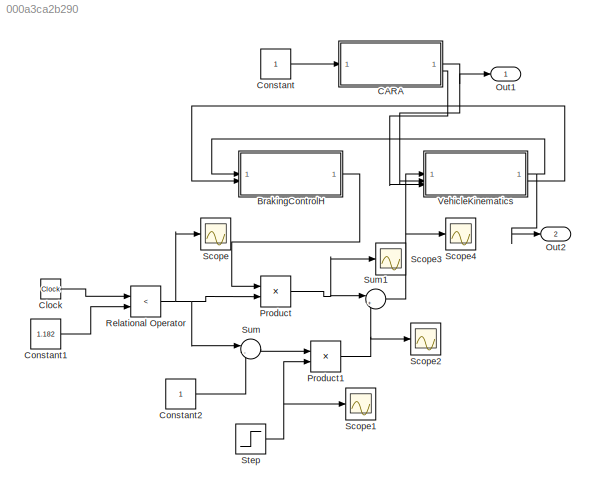
MODEL slx_000a3ca2b290
KIND model
CONFIG AbsTol = auto
CONFIG EnableMultiTasking = off
CONFIG FixedStep = 0.01
CONFIG MaxStep = auto
CONFIG MinStep = auto
CONFIG RelTol = 1e-3
CONFIG SampleTimeConstraint = Unconstrained
CONFIG SolverName = VariableStepAuto
CONFIG StartTime = 0.0
CONFIG StopTime = 10
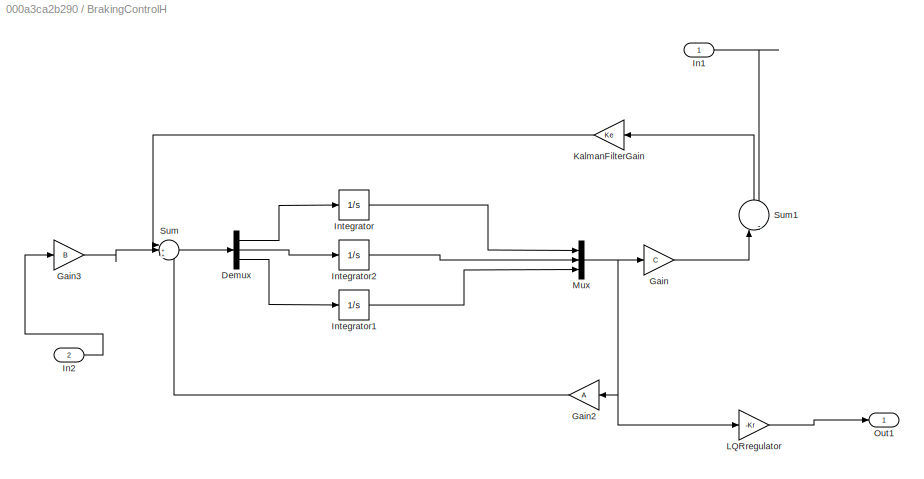
BLOCK [SubSystem] BrakingControlH
BLOCK [Demux] BrakingControlH/Demux
  Outputs = 3
BLOCK [Gain] BrakingControlH/Gain
  Gain = C
  Multiplication = Matrix(K*u)
BLOCK [Gain] BrakingControlH/Gain2
  Gain = A
  Multiplication = Matrix(K*u)
  NameLocation = top
BLOCK [Gain] BrakingControlH/Gain3
  Gain = B
BLOCK [Inport] BrakingControlH/In1
BLOCK [Inport] BrakingControlH/In2
  Port = 2
BLOCK [Integrator] BrakingControlH/Integrator
BLOCK [Integrator] BrakingControlH/Integrator1
BLOCK [Integrator] BrakingControlH/Integrator2
BLOCK [Gain] BrakingControlH/KalmanFilterGain
  Gain = Ke
  NameLocation = top
BLOCK [Gain] BrakingControlH/LQRregulator
  Gain = -Kr
  Multiplication = Matrix(K*u)
BLOCK [Mux] BrakingControlH/Mux
  DisplayOption = bar
  Inputs = 3
BLOCK [Outport] BrakingControlH/Out1
BLOCK [Sum] BrakingControlH/Sum
  Inputs = |+++
BLOCK [Sum] BrakingControlH/Sum1
  Inputs = |-+
  NameLocation = right
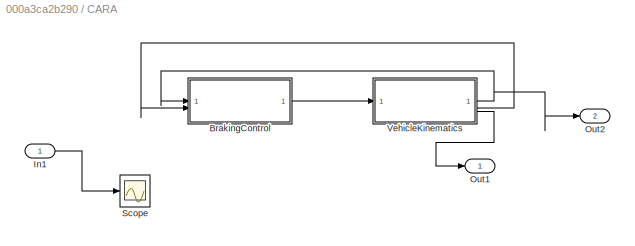
BLOCK [SubSystem] CARA
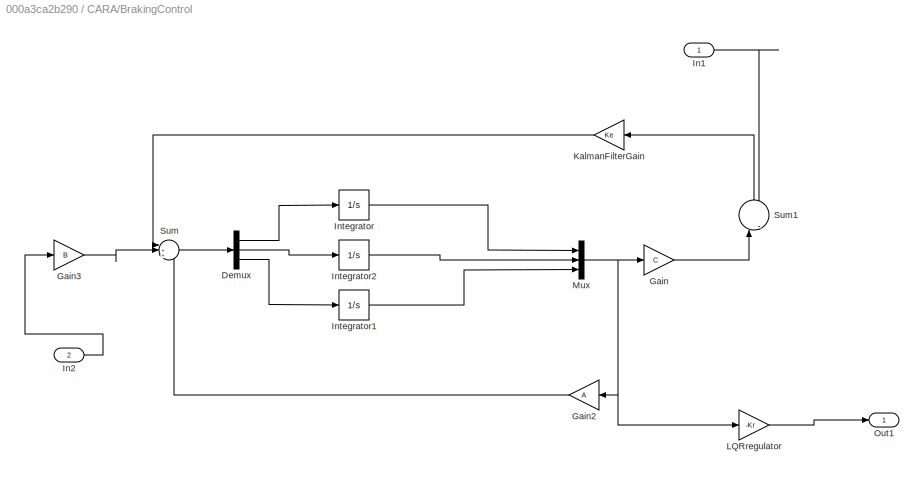
BLOCK [SubSystem] CARA/BrakingControl
BLOCK [Demux] CARA/BrakingControl/Demux
  Outputs = 3
BLOCK [Gain] CARA/BrakingControl/Gain
  Gain = C
  Multiplication = Matrix(K*u)
BLOCK [Gain] CARA/BrakingControl/Gain2
  Gain = A
  Multiplication = Matrix(K*u)
  NameLocation = top
BLOCK [Gain] CARA/BrakingControl/Gain3
  Gain = B
BLOCK [Inport] CARA/BrakingControl/In1
BLOCK [Inport] CARA/BrakingControl/In2
  Port = 2
BLOCK [Integrator] CARA/BrakingControl/Integrator
BLOCK [Integrator] CARA/BrakingControl/Integrator1
BLOCK [Integrator] CARA/BrakingControl/Integrator2
BLOCK [Gain] CARA/BrakingControl/KalmanFilterGain
  Gain = Ke
  NameLocation = top
BLOCK [Gain] CARA/BrakingControl/LQRregulator
  Gain = -Kr
  Multiplication = Matrix(K*u)
BLOCK [Mux] CARA/BrakingControl/Mux
  DisplayOption = bar
  Inputs = 3
BLOCK [Outport] CARA/BrakingControl/Out1
BLOCK [Sum] CARA/BrakingControl/Sum
  Inputs = |+++
BLOCK [Sum] CARA/BrakingControl/Sum1
  Inputs = |-+
  NameLocation = right
BLOCK [Inport] CARA/In1
BLOCK [Outport] CARA/Out1
BLOCK [Outport] CARA/Out2
  Port = 2
BLOCK [Scope] CARA/Scope
  Floating = off
  NumInputPorts = 1
  ScopeSpecificationString = Simulink.scopes.TimeScopeBlockCfg('CurrentConfiguration', extmgr.ConfigurationSet(extmgr.Configuration('Core','General UI',true),extmgr.Configuration('Core','Source UI',true),extmgr.Configuration('Sources','WiredSimulink',true,'DataLoggingVariableName','ScopeData1'),extmgr.Configuration('Visuals','Time Domain',true),extmgr.Configuration('Tools','Plot Navigation',true),extmgr.Configuration('Tools',...<+40ch>
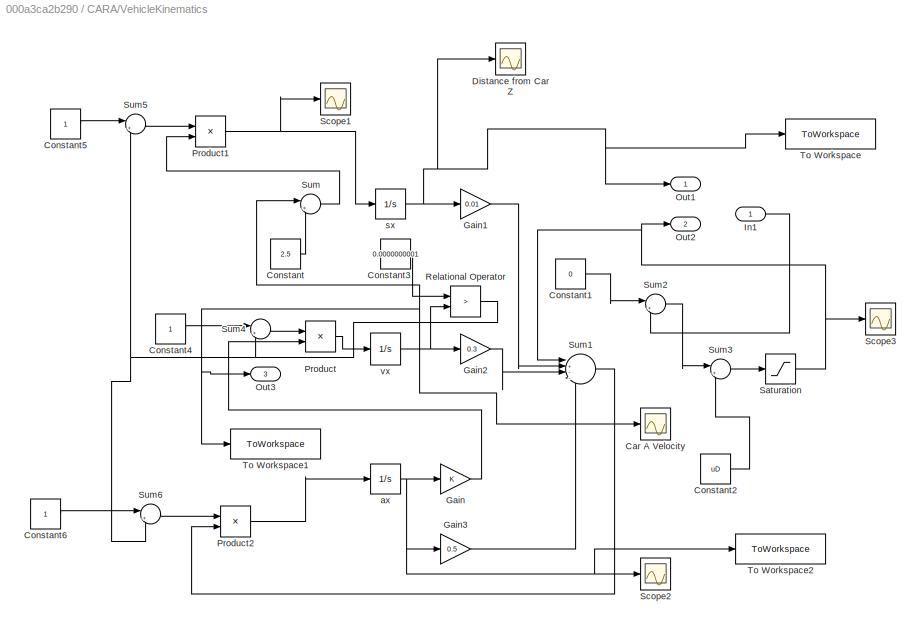
BLOCK [SubSystem] CARA/VehicleKinematics
BLOCK [Scope] CARA/VehicleKinematics/Car A Velocity
  Floating = off
  NumInputPorts = 1
  ScopeSpecificationString = Simulink.scopes.TimeScopeBlockCfg('CurrentConfiguration', extmgr.ConfigurationSet(extmgr.Configuration('Core','General UI',true),extmgr.Configuration('Core','Source UI',true),extmgr.Configuration('Sources','WiredSimulink',true,'DataLoggingVariableName','ScopeData2'),extmgr.Configuration('Visuals','Time Domain',true,'SerializedDisplays',{struct('MinYLimReal','62.44019','MaxYLimReal','76.82742','YLa...<+1426ch>
BLOCK [Constant] CARA/VehicleKinematics/Constant
  Value = 2.5
BLOCK [Constant] CARA/VehicleKinematics/Constant1
  Value = 0
BLOCK [Constant] CARA/VehicleKinematics/Constant2
  Value = uD
BLOCK [Constant] CARA/VehicleKinematics/Constant3
  Value = 0.0000000001
BLOCK [Constant] CARA/VehicleKinematics/Constant4
BLOCK [Constant] CARA/VehicleKinematics/Constant5
BLOCK [Constant] CARA/VehicleKinematics/Constant6
BLOCK [Scope] CARA/VehicleKinematics/Distance from Car Z
  Floating = off
  NumInputPorts = 1
  ScopeSpecificationString = Simulink.scopes.TimeScopeBlockCfg('CurrentConfiguration', extmgr.ConfigurationSet(extmgr.Configuration('Core','General UI',true),extmgr.Configuration('Core','Source UI',true),extmgr.Configuration('Sources','WiredSimulink',true,'DataLoggingVariableName','ScopeData1'),extmgr.Configuration('Visuals','Time Domain',true,'SerializedDisplays',{struct('MinYLimReal','-51.1177','MaxYLimReal','22.05928','YLa...<+1422ch>
BLOCK [Gain] CARA/VehicleKinematics/Gain
BLOCK [Gain] CARA/VehicleKinematics/Gain1
  Gain = 0.01
BLOCK [Gain] CARA/VehicleKinematics/Gain2
  Gain = 0.3
BLOCK [Gain] CARA/VehicleKinematics/Gain3
  Gain = 0.5
BLOCK [Inport] CARA/VehicleKinematics/In1
BLOCK [Outport] CARA/VehicleKinematics/Out1
BLOCK [Outport] CARA/VehicleKinematics/Out2
  Port = 2
BLOCK [Outport] CARA/VehicleKinematics/Out3
  Port = 3
BLOCK [Product] CARA/VehicleKinematics/Product
BLOCK [Product] CARA/VehicleKinematics/Product1
BLOCK [Product] CARA/VehicleKinematics/Product2
BLOCK [RelationalOperator] CARA/VehicleKinematics/Relational Operator
  InputSameDT = off
  Operator = >
  OutDataTypeStr = boolean
  RndMeth = Simplest
BLOCK [Saturate] CARA/VehicleKinematics/Saturation
  LowerLimit = -150
  UpperLimit = 0
BLOCK [Scope] CARA/VehicleKinematics/Scope1
  Floating = off
  NumInputPorts = 1
  ScopeSpecificationString = Simulink.scopes.TimeScopeBlockCfg('CurrentConfiguration', extmgr.ConfigurationSet(extmgr.Configuration('Core','General UI',true),extmgr.Configuration('Core','Source UI',true),extmgr.Configuration('Sources','WiredSimulink',true,'DataLoggingVariableName','ScopeData2'),extmgr.Configuration('Visuals','Time Domain',true,'SerializedDisplays',{struct('MinYLimReal','59.94019','MaxYLimReal','74.32742','YLa...<+1432ch>
BLOCK [Scope] CARA/VehicleKinematics/Scope2
  Floating = off
  NumInputPorts = 1
  ScopeSpecificationString = Simulink.scopes.TimeScopeBlockCfg('CurrentConfiguration', extmgr.ConfigurationSet(extmgr.Configuration('Core','General UI',true),extmgr.Configuration('Core','Source UI',true),extmgr.Configuration('Sources','WiredSimulink',true,'DataLoggingVariableName','ScopeData3'),extmgr.Configuration('Visuals','Time Domain',true,'SerializedDisplays',{struct('MinYLimReal','-43.53248','MaxYLimReal','4.83694','YLa...<+1365ch>
BLOCK [Scope] CARA/VehicleKinematics/Scope3
  Floating = off
  NumInputPorts = 1
  ScopeSpecificationString = Simulink.scopes.TimeScopeBlockCfg('CurrentConfiguration', extmgr.ConfigurationSet(extmgr.Configuration('Core','General UI',true),extmgr.Configuration('Core','Source UI',true),extmgr.Configuration('Sources','WiredSimulink',true,'DataLoggingVariableName','ScopeData4'),extmgr.Configuration('Visuals','Time Domain',true,'SerializedDisplays',{struct('MinYLimReal','-168.75','MaxYLimReal','18.75','YLabelR...<+1421ch>
BLOCK [Sum] CARA/VehicleKinematics/Sum
  Inputs = |+-
BLOCK [Sum] CARA/VehicleKinematics/Sum1
  Inputs = |+---
BLOCK [Sum] CARA/VehicleKinematics/Sum2
  Inputs = |++
BLOCK [Sum] CARA/VehicleKinematics/Sum3
  Inputs = |++
BLOCK [Sum] CARA/VehicleKinematics/Sum4
  Inputs = |+-
BLOCK [Sum] CARA/VehicleKinematics/Sum5
  Inputs = |+-
BLOCK [Sum] CARA/VehicleKinematics/Sum6
  Inputs = |+-
BLOCK [ToWorkspace] CARA/VehicleKinematics/To Workspace
  FixptAsFi = on
  MaxDataPoints = inf
  SampleTime = -1
  SaveFormat = Timeseries
  VariableName = sx1
BLOCK [ToWorkspace] CARA/VehicleKinematics/To Workspace1
  FixptAsFi = on
  MaxDataPoints = inf
  SampleTime = -1
  SaveFormat = Timeseries
  VariableName = vx1
BLOCK [ToWorkspace] CARA/VehicleKinematics/To Workspace2
  FixptAsFi = on
  MaxDataPoints = inf
  SampleTime = -1
  SaveFormat = Timeseries
  VariableName = ax1
BLOCK [Integrator] CARA/VehicleKinematics/ax
BLOCK [Integrator] CARA/VehicleKinematics/sx
  InitialCondition = -43.8
BLOCK [Integrator] CARA/VehicleKinematics/vx
  InitialCondition = 75.3887
BLOCK [Clock] Clock
BLOCK [Constant] Constant
BLOCK [Constant] Constant1
  Value = 1.182
BLOCK [Constant] Constant2
BLOCK [Outport] Out1
BLOCK [Outport] Out2
  Port = 2
BLOCK [Product] Product
BLOCK [Product] Product1
BLOCK [RelationalOperator] Relational Operator
  InputSameDT = off
  Operator = <
  OutDataTypeStr = boolean
  RndMeth = Simplest
BLOCK [Scope] Scope
  Floating = off
  NumInputPorts = 1
  ScopeSpecificationString = Simulink.scopes.TimeScopeBlockCfg('CurrentConfiguration', extmgr.ConfigurationSet(extmgr.Configuration('Core','General UI',true),extmgr.Configuration('Core','Source UI',true),extmgr.Configuration('Sources','WiredSimulink',true,'DataLoggingVariableName','ScopeData1'),extmgr.Configuration('Visuals','Time Domain',true,'SerializedDisplays',{struct('MinYLimReal','-0.125','MaxYLimReal','1.125','YLabelRe...<+1396ch>
BLOCK [Scope] Scope1
  Floating = off
  NumInputPorts = 1
  ScopeSpecificationString = Simulink.scopes.TimeScopeBlockCfg('CurrentConfiguration', extmgr.ConfigurationSet(extmgr.Configuration('Core','General UI',true),extmgr.Configuration('Core','Source UI',true),extmgr.Configuration('Sources','WiredSimulink',true,'DataLoggingVariableName','ScopeData2'),extmgr.Configuration('Visuals','Time Domain',true,'SerializedDisplays',{struct('MinYLimReal','-265.00000','MaxYLimReal','-65.00000','...<+1436ch>
BLOCK [Scope] Scope2
  Floating = off
  NumInputPorts = 1
  ScopeSpecificationString = Simulink.scopes.TimeScopeBlockCfg('CurrentConfiguration', extmgr.ConfigurationSet(extmgr.Configuration('Core','General UI',true),extmgr.Configuration('Core','Source UI',true),extmgr.Configuration('Sources','WiredSimulink',true,'DataLoggingVariableName','ScopeData3'),extmgr.Configuration('Visuals','Time Domain',true,'SerializedDisplays',{struct('MinYLimReal','-265.00000','MaxYLimReal','-65.00000','...<+1411ch>
BLOCK [Scope] Scope3
  Floating = off
  NumInputPorts = 1
  ScopeSpecificationString = Simulink.scopes.TimeScopeBlockCfg('CurrentConfiguration', extmgr.ConfigurationSet(extmgr.Configuration('Core','General UI',true),extmgr.Configuration('Core','Source UI',true),extmgr.Configuration('Sources','WiredSimulink',true,'DataLoggingVariableName','ScopeData4'),extmgr.Configuration('Visuals','Time Domain',true,'SerializedDisplays',{struct('MinYLimReal','-1.00000','MaxYLimReal','1.00000','YLab...<+1422ch>
BLOCK [Scope] Scope4
  Floating = off
  NumInputPorts = 1
  ScopeSpecificationString = Simulink.scopes.TimeScopeBlockCfg('CurrentConfiguration', extmgr.ConfigurationSet(extmgr.Configuration('Core','General UI',true),extmgr.Configuration('Core','Source UI',true),extmgr.Configuration('Sources','WiredSimulink',true,'DataLoggingVariableName','ScopeData5'),extmgr.Configuration('Visuals','Time Domain',true,'SerializedDisplays',{struct('MinYLimReal','-602.98178','MaxYLimReal','5426.83602',...<+1411ch>
BLOCK [Step] Step
  After = -165
  SampleTime = 0
  Time = 1.225
BLOCK [Sum] Sum
  Inputs = |-+
BLOCK [Sum] Sum1
  Inputs = |++
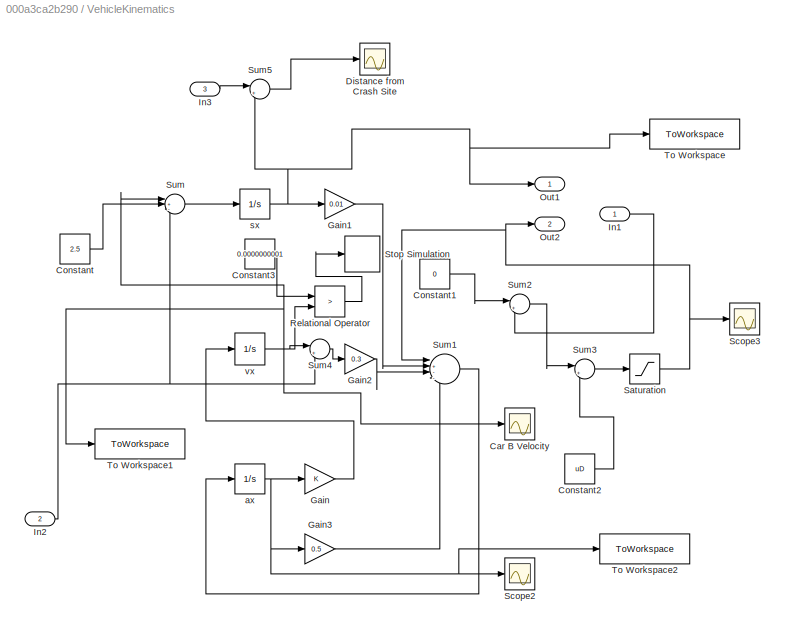
BLOCK [SubSystem] VehicleKinematics
BLOCK [Scope] VehicleKinematics/Car B Velocity
  Floating = off
  NumInputPorts = 1
  ScopeSpecificationString = Simulink.scopes.TimeScopeBlockCfg('CurrentConfiguration', extmgr.ConfigurationSet(extmgr.Configuration('Core','General UI',true),extmgr.Configuration('Core','Source UI',true),extmgr.Configuration('Sources','WiredSimulink',true,'DataLoggingVariableName','ScopeData2'),extmgr.Configuration('Visuals','Time Domain',true,'SerializedDisplays',{struct('MinYLimReal','-5.87471','MaxYLimReal','52.87241','YLa...<+1424ch>
BLOCK [Constant] VehicleKinematics/Constant
  Value = 2.5
BLOCK [Constant] VehicleKinematics/Constant1
  Value = 0
BLOCK [Constant] VehicleKinematics/Constant2
  Value = uD
BLOCK [Constant] VehicleKinematics/Constant3
  Value = 0.0000000001
BLOCK [Scope] VehicleKinematics/Distance from Crash Site
  Floating = off
  NumInputPorts = 1
  ScopeSpecificationString = Simulink.scopes.TimeScopeBlockCfg('CurrentConfiguration', extmgr.ConfigurationSet(extmgr.Configuration('Core','General UI',true),extmgr.Configuration('Core','Source UI',true),extmgr.Configuration('Sources','WiredSimulink',true,'DataLoggingVariableName','ScopeData1'),extmgr.Configuration('Visuals','Time Domain',true,'SerializedDisplays',{struct('MinYLimReal','-97.21266','MaxYLimReal','-1.08606','YL...<+1401ch>
BLOCK [Gain] VehicleKinematics/Gain
BLOCK [Gain] VehicleKinematics/Gain1
  Gain = 0.01
BLOCK [Gain] VehicleKinematics/Gain2
  Gain = 0.3
BLOCK [Gain] VehicleKinematics/Gain3
  Gain = 0.5
BLOCK [Inport] VehicleKinematics/In1
BLOCK [Inport] VehicleKinematics/In2
  Port = 2
BLOCK [Inport] VehicleKinematics/In3
  Port = 3
BLOCK [Outport] VehicleKinematics/Out1
BLOCK [Outport] VehicleKinematics/Out2
  Port = 2
BLOCK [RelationalOperator] VehicleKinematics/Relational Operator
  InputSameDT = off
  Operator = >
  OutDataTypeStr = boolean
  RndMeth = Simplest
BLOCK [Saturate] VehicleKinematics/Saturation
  LowerLimit = -15000
  UpperLimit = 0
BLOCK [Scope] VehicleKinematics/Scope2
  Floating = off
  NumInputPorts = 1
  ScopeSpecificationString = Simulink.scopes.TimeScopeBlockCfg('CurrentConfiguration', extmgr.ConfigurationSet(extmgr.Configuration('Core','General UI',true),extmgr.Configuration('Core','Source UI',true),extmgr.Configuration('Sources','WiredSimulink',true,'DataLoggingVariableName','ScopeData3'),extmgr.Configuration('Visuals','Time Domain',true,'SerializedDisplays',{struct('MinYLimReal','-116.4464','MaxYLimReal','12.93849','YL...<+1428ch>
BLOCK [Scope] VehicleKinematics/Scope3
  Floating = off
  NumInputPorts = 1
  ScopeSpecificationString = Simulink.scopes.TimeScopeBlockCfg('CurrentConfiguration', extmgr.ConfigurationSet(extmgr.Configuration('Core','General UI',true),extmgr.Configuration('Core','Source UI',true),extmgr.Configuration('Sources','WiredSimulink',true,'DataLoggingVariableName','ScopeData4'),extmgr.Configuration('Visuals','Time Domain',true,'SerializedDisplays',{struct('MinYLimReal','-265.1','MaxYLimReal','-65.1','YLabelRe...<+1417ch>
BLOCK [Stop] VehicleKinematics/Stop Simulation
BLOCK [Sum] VehicleKinematics/Sum
  Inputs = |+--
BLOCK [Sum] VehicleKinematics/Sum1
  Inputs = |+---
BLOCK [Sum] VehicleKinematics/Sum2
  Inputs = |++
BLOCK [Sum] VehicleKinematics/Sum3
  Inputs = |++
BLOCK [Sum] VehicleKinematics/Sum4
  Inputs = |+-
BLOCK [Sum] VehicleKinematics/Sum5
  Inputs = |++
BLOCK [ToWorkspace] VehicleKinematics/To Workspace
  FixptAsFi = on
  MaxDataPoints = inf
  SampleTime = -1
  SaveFormat = Timeseries
  VariableName = sxB
BLOCK [ToWorkspace] VehicleKinematics/To Workspace1
  FixptAsFi = on
  MaxDataPoints = inf
  SampleTime = -1
  SaveFormat = Timeseries
  VariableName = vxB
BLOCK [ToWorkspace] VehicleKinematics/To Workspace2
  FixptAsFi = on
  MaxDataPoints = inf
  SampleTime = -1
  SaveFormat = Timeseries
  VariableName = axB
BLOCK [Integrator] VehicleKinematics/ax
BLOCK [Integrator] VehicleKinematics/sx
  InitialCondition = -43.8
BLOCK [Integrator] VehicleKinematics/vx
  InitialCondition = 46.9977
LINE BrakingControlH/Demux:1 -> BrakingControlH/Integrator:1
LINE BrakingControlH/Demux:2 -> BrakingControlH/Integrator2:1
LINE BrakingControlH/Demux:3 -> BrakingControlH/Integrator1:1
LINE BrakingControlH/Gain2:1 -> BrakingControlH/Sum:3
LINE BrakingControlH/Gain3:1 -> BrakingControlH/Sum:2
LINE BrakingControlH/Gain:1 -> BrakingControlH/Sum1:1
LINE BrakingControlH/In1:1 -> BrakingControlH/Sum1:2
LINE BrakingControlH/In2:1 -> BrakingControlH/Gain3:1
LINE BrakingControlH/Integrator1:1 -> BrakingControlH/Mux:3
LINE BrakingControlH/Integrator2:1 -> BrakingControlH/Mux:2
LINE BrakingControlH/Integrator:1 -> BrakingControlH/Mux:1
LINE BrakingControlH/KalmanFilterGain:1 -> BrakingControlH/Sum:1
LINE BrakingControlH/LQRregulator:1 -> BrakingControlH/Out1:1
NET BrakingControlH/Mux:1 -> BrakingControlH/Gain2:1, BrakingControlH/Gain:1, BrakingControlH/LQRregulator:1
LINE BrakingControlH/Sum1:1 -> BrakingControlH/KalmanFilterGain:1
LINE BrakingControlH/Sum:1 -> BrakingControlH/Demux:1
LINE BrakingControlH:1 -> Product:1
LINE CARA/BrakingControl/Demux:1 -> CARA/BrakingControl/Integrator:1
LINE CARA/BrakingControl/Demux:2 -> CARA/BrakingControl/Integrator2:1
LINE CARA/BrakingControl/Demux:3 -> CARA/BrakingControl/Integrator1:1
LINE CARA/BrakingControl/Gain2:1 -> CARA/BrakingControl/Sum:3
LINE CARA/BrakingControl/Gain3:1 -> CARA/BrakingControl/Sum:2
LINE CARA/BrakingControl/Gain:1 -> CARA/BrakingControl/Sum1:1
LINE CARA/BrakingControl/In1:1 -> CARA/BrakingControl/Sum1:2
LINE CARA/BrakingControl/In2:1 -> CARA/BrakingControl/Gain3:1
LINE CARA/BrakingControl/Integrator1:1 -> CARA/BrakingControl/Mux:3
LINE CARA/BrakingControl/Integrator2:1 -> CARA/BrakingControl/Mux:2
LINE CARA/BrakingControl/Integrator:1 -> CARA/BrakingControl/Mux:1
LINE CARA/BrakingControl/KalmanFilterGain:1 -> CARA/BrakingControl/Sum:1
LINE CARA/BrakingControl/LQRregulator:1 -> CARA/BrakingControl/Out1:1
NET CARA/BrakingControl/Mux:1 -> CARA/BrakingControl/Gain2:1, CARA/BrakingControl/Gain:1, CARA/BrakingControl/LQRregulator:1
LINE CARA/BrakingControl/Sum1:1 -> CARA/BrakingControl/KalmanFilterGain:1
LINE CARA/BrakingControl/Sum:1 -> CARA/BrakingControl/Demux:1
LINE CARA/BrakingControl:1 -> CARA/VehicleKinematics:1
LINE CARA/In1:1 -> CARA/Scope:1
LINE CARA/VehicleKinematics/Constant1:1 -> CARA/VehicleKinematics/Sum2:1
LINE CARA/VehicleKinematics/Constant2:1 -> CARA/VehicleKinematics/Sum3:2
LINE CARA/VehicleKinematics/Constant3:1 -> CARA/VehicleKinematics/Relational Operator:1
LINE CARA/VehicleKinematics/Constant4:1 -> CARA/VehicleKinematics/Sum4:1
LINE CARA/VehicleKinematics/Constant5:1 -> CARA/VehicleKinematics/Sum5:1
LINE CARA/VehicleKinematics/Constant6:1 -> CARA/VehicleKinematics/Sum6:1
LINE CARA/VehicleKinematics/Constant:1 -> CARA/VehicleKinematics/Sum:2
LINE CARA/VehicleKinematics/Gain1:1 -> CARA/VehicleKinematics/Sum1:2
LINE CARA/VehicleKinematics/Gain2:1 -> CARA/VehicleKinematics/Sum1:3
LINE CARA/VehicleKinematics/Gain3:1 -> CARA/VehicleKinematics/Sum1:4
LINE CARA/VehicleKinematics/Gain:1 -> CARA/VehicleKinematics/Product:2
LINE CARA/VehicleKinematics/In1:1 -> CARA/VehicleKinematics/Sum2:2
NET CARA/VehicleKinematics/Product1:1 -> CARA/VehicleKinematics/Scope1:1, CARA/VehicleKinematics/sx:1
LINE CARA/VehicleKinematics/Product2:1 -> CARA/VehicleKinematics/ax:1
LINE CARA/VehicleKinematics/Product:1 -> CARA/VehicleKinematics/vx:1
NET CARA/VehicleKinematics/Relational Operator:1 -> CARA/VehicleKinematics/Sum4:2, CARA/VehicleKinematics/Sum5:2, CARA/VehicleKinematics/Sum6:2
NET CARA/VehicleKinematics/Saturation:1 -> CARA/VehicleKinematics/Out2:1, CARA/VehicleKinematics/Scope3:1, CARA/VehicleKinematics/Sum1:1
LINE CARA/VehicleKinematics/Sum1:1 -> CARA/VehicleKinematics/Product2:2
LINE CARA/VehicleKinematics/Sum2:1 -> CARA/VehicleKinematics/Sum3:1
LINE CARA/VehicleKinematics/Sum3:1 -> CARA/VehicleKinematics/Saturation:1
LINE CARA/VehicleKinematics/Sum4:1 -> CARA/VehicleKinematics/Product:1
LINE CARA/VehicleKinematics/Sum5:1 -> CARA/VehicleKinematics/Product1:1
LINE CARA/VehicleKinematics/Sum6:1 -> CARA/VehicleKinematics/Product2:1
LINE CARA/VehicleKinematics/Sum:1 -> CARA/VehicleKinematics/Product1:2
NET CARA/VehicleKinematics/ax:1 -> CARA/VehicleKinematics/Gain3:1, CARA/VehicleKinematics/Gain:1, CARA/VehicleKinematics/Scope2:1, CARA/VehicleKinematics/To Workspace2:1
NET CARA/VehicleKinematics/sx:1 -> CARA/VehicleKinematics/Distance from Car Z:1, CARA/VehicleKinematics/Gain1:1, CARA/VehicleKinematics/Out1:1, CARA/VehicleKinematics/To Workspace:1
NET CARA/VehicleKinematics/vx:1 -> CARA/VehicleKinematics/Car A Velocity:1, CARA/VehicleKinematics/Gain2:1, CARA/VehicleKinematics/Out3:1, CARA/VehicleKinematics/Relational Operator:2, CARA/VehicleKinematics/Sum:1, CARA/VehicleKinematics/To Workspace1:1
NET CARA/VehicleKinematics:1 -> CARA/BrakingControl:1, CARA/Out2:1
LINE CARA/VehicleKinematics:2 -> CARA/BrakingControl:2
LINE CARA/VehicleKinematics:3 -> CARA/Out1:1
NET CARA:1 -> Out1:1, VehicleKinematics:2
LINE CARA:2 -> VehicleKinematics:3
LINE Clock:1 -> Relational Operator:1
LINE Constant1:1 -> Relational Operator:2
LINE Constant2:1 -> Sum:2
LINE Constant:1 -> CARA:1
NET Product1:1 -> Scope2:1, Sum1:2
NET Product:1 -> Scope3:1, Sum1:1
NET Relational Operator:1 -> Product:2, Scope:1, Sum:1
NET Step:1 -> Product1:2, Scope1:1
NET Sum1:1 -> Scope4:1, VehicleKinematics:1
LINE Sum:1 -> Product1:1
LINE VehicleKinematics/Constant1:1 -> VehicleKinematics/Sum2:1
LINE VehicleKinematics/Constant2:1 -> VehicleKinematics/Sum3:2
LINE VehicleKinematics/Constant3:1 -> VehicleKinematics/Relational Operator:1
LINE VehicleKinematics/Constant:1 -> VehicleKinematics/Sum:2
LINE VehicleKinematics/Gain1:1 -> VehicleKinematics/Sum1:2
LINE VehicleKinematics/Gain2:1 -> VehicleKinematics/Sum1:3
LINE VehicleKinematics/Gain3:1 -> VehicleKinematics/Sum1:4
LINE VehicleKinematics/Gain:1 -> VehicleKinematics/vx:1
LINE VehicleKinematics/In1:1 -> VehicleKinematics/Sum2:2
NET VehicleKinematics/In2:1 -> VehicleKinematics/Sum4:2, VehicleKinematics/Sum:3
LINE VehicleKinematics/In3:1 -> VehicleKinematics/Sum5:1
LINE VehicleKinematics/Relational Operator:1 -> VehicleKinematics/Stop Simulation:1
NET VehicleKinematics/Saturation:1 -> VehicleKinematics/Out2:1, VehicleKinematics/Scope3:1, VehicleKinematics/Sum1:1
LINE VehicleKinematics/Sum1:1 -> VehicleKinematics/ax:1
LINE VehicleKinematics/Sum2:1 -> VehicleKinematics/Sum3:1
LINE VehicleKinematics/Sum3:1 -> VehicleKinematics/Saturation:1
LINE VehicleKinematics/Sum4:1 -> VehicleKinematics/Gain2:1
LINE VehicleKinematics/Sum5:1 -> VehicleKinematics/Distance from Crash Site:1
LINE VehicleKinematics/Sum:1 -> VehicleKinematics/sx:1
NET VehicleKinematics/ax:1 -> VehicleKinematics/Gain3:1, VehicleKinematics/Gain:1, VehicleKinematics/Scope2:1, VehicleKinematics/To Workspace2:1
NET VehicleKinematics/sx:1 -> VehicleKinematics/Gain1:1, VehicleKinematics/Out1:1, VehicleKinematics/Sum5:2, VehicleKinematics/To Workspace:1
NET VehicleKinematics/vx:1 -> VehicleKinematics/Car B Velocity:1, VehicleKinematics/Relational Operator:2, VehicleKinematics/Sum4:1, VehicleKinematics/Sum:1, VehicleKinematics/To Workspace1:1
NET VehicleKinematics:1 -> BrakingControlH:1, Out2:1
LINE VehicleKinematics:2 -> BrakingControlH:2
note: NET lines group one-source signal fan-out (src -> all destinations, sorted); 1:1 wires keep LINE
